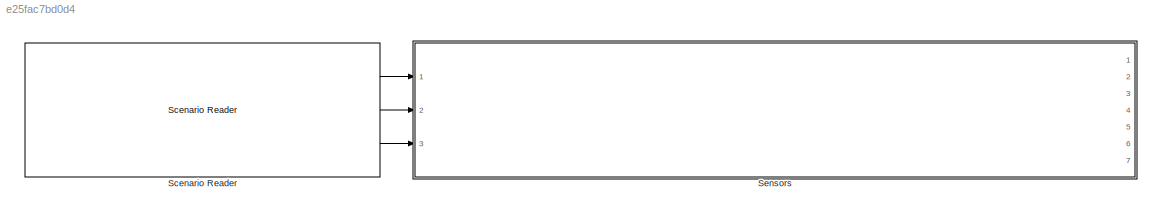
MODEL slx_e25fac7bd0d4
KIND model
CONFIG AbsTol = auto
CONFIG EnableMultiTasking = off
CONFIG FixedStep = auto
CONFIG MaxStep = auto
CONFIG MinStep = auto
CONFIG RelTol = 1e-3
CONFIG SampleTimeConstraint = Unconstrained
CONFIG SolverName = FixedStepDiscrete
CONFIG StartTime = 0.0
CONFIG StopTime = 10.0
WORKSPACE source: mxarray member
WORKSPACE firstWarning = 1
WORKSPACE originalScenarioChecksum = 'D0B0A4B173DD3DA6100BB92ACC3E01B4'
BLOCK [Reference] Scenario Reader  REF=drivingscenarioandsensors/Scenario Reader
  Ports = [0, 3]
  SourceBlock = drivingscenarioandsensors/Scenario Reader
  SourceProductBaseCode = DR
  SourceType = driving.scenario.internal.ScenarioReader
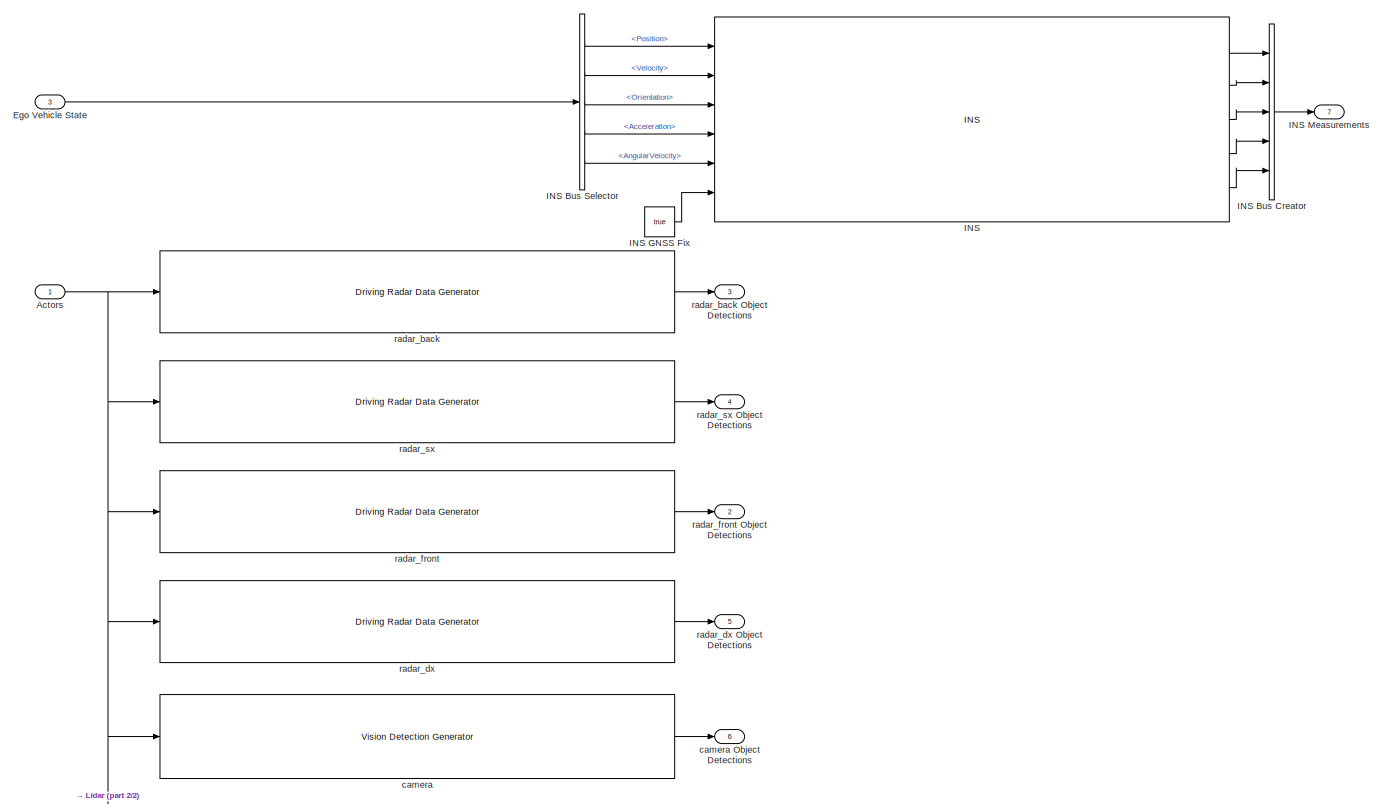
[diagram: Sensors - part 1/2, most of the canvas]
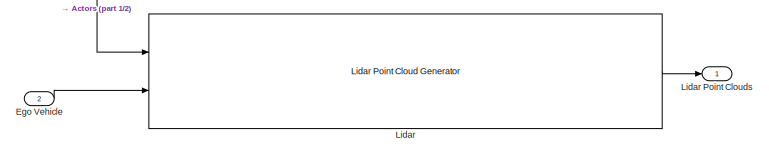
[diagram: Sensors - part 2/2, bottom left region]
BLOCK [SubSystem] Sensors
  Ports = [3, 7]
  RequestExecContextInheritance = off
BLOCK [Inport] Sensors/Actors
BLOCK [Inport] Sensors/Ego Vehicle
  Port = 2
BLOCK [Inport] Sensors/Ego Vehicle State
  Port = 3
BLOCK [Reference] Sensors/INS  REF=sensorinslib/INS
  Ports = [6, 5]
  SourceBlock = sensorinslib/INS
  SourceProductBaseCode = DR,TF,NV,UV
  SourceType = fusion.internal.simulink.insSensor
BLOCK [BusCreator] Sensors/INS Bus Creator
  InheritFromInputs = on
  Inputs = 5
  Ports = [5, 1]
BLOCK [BusSelector] Sensors/INS Bus Selector
  OutputSignals = Position,Velocity,Orientation,Acceleration,AngularVelocity
  Ports = [1, 5]
BLOCK [Constant] Sensors/INS GNSS Fix
  Value = true
BLOCK [Outport] Sensors/INS Measurements
  Port = 7
BLOCK [Reference] Sensors/Lidar  REF=drivingscenarioandsensors/Lidar Point Cloud Generator
  Ports = [2, 1]
  SourceBlock = drivingscenarioandsensors/Lidar Point Cloud Generator
  SourceProductBaseCode = DR
  SourceType = lidarPointCloudGenerator
BLOCK [Outport] Sensors/Lidar Point Clouds
BLOCK [Reference] Sensors/camera  REF=drivingscenarioandsensors/Vision Detection Generator
  Ports = [1, 1]
  SourceBlock = drivingscenarioandsensors/Vision Detection Generator
  SourceProductBaseCode = DR
  SourceType = visionDetectionGenerator
BLOCK [Outport] Sensors/camera Object Detections
  Port = 6
BLOCK [Reference] Sensors/radar_back  REF=drivingscenarioandsensors/Driving Radar Data Generator
  Ports = [1, 1]
  SourceBlock = drivingscenarioandsensors/Driving Radar Data Generator
  SourceProductBaseCode = DR
  SourceType = drivingRadarDataGenerator
BLOCK [Outport] Sensors/radar_back Object Detections
  Port = 3
BLOCK [Reference] Sensors/radar_dx  REF=drivingscenarioandsensors/Driving Radar Data Generator
  Ports = [1, 1]
  SourceBlock = drivingscenarioandsensors/Driving Radar Data Generator
  SourceProductBaseCode = DR
  SourceType = drivingRadarDataGenerator
BLOCK [Outport] Sensors/radar_dx Object Detections
  Port = 5
BLOCK [Reference] Sensors/radar_front  REF=drivingscenarioandsensors/Driving Radar Data Generator
  Ports = [1, 1]
  SourceBlock = drivingscenarioandsensors/Driving Radar Data Generator
  SourceProductBaseCode = DR
  SourceType = drivingRadarDataGenerator
BLOCK [Outport] Sensors/radar_front Object Detections
  Port = 2
BLOCK [Reference] Sensors/radar_sx  REF=drivingscenarioandsensors/Driving Radar Data Generator
  Ports = [1, 1]
  SourceBlock = drivingscenarioandsensors/Driving Radar Data Generator
  SourceProductBaseCode = DR
  SourceType = drivingRadarDataGenerator
BLOCK [Outport] Sensors/radar_sx Object Detections
  Port = 4
LINE Scenario Reader:1 -> Sensors:1
LINE Scenario Reader:2 -> Sensors:2
LINE Scenario Reader:3 -> Sensors:3
NET Sensors/Actors:1 -> Sensors/Lidar:1, Sensors/camera:1, Sensors/radar_back:1, Sensors/radar_dx:1, Sensors/radar_front:1, Sensors/radar_sx:1
LINE Sensors/Ego Vehicle State:1 -> Sensors/INS Bus Selector:1
LINE Sensors/Ego Vehicle:1 -> Sensors/Lidar:2
LINE Sensors/INS Bus Creator:1 -> Sensors/INS Measurements:1
LINE Sensors/INS Bus Selector:1 -> Sensors/INS:1
LINE Sensors/INS Bus Selector:2 -> Sensors/INS:2
LINE Sensors/INS Bus Selector:3 -> Sensors/INS:3
LINE Sensors/INS Bus Selector:4 -> Sensors/INS:4
LINE Sensors/INS Bus Selector:5 -> Sensors/INS:5
LINE Sensors/INS GNSS Fix:1 -> Sensors/INS:6
LINE Sensors/INS:1 -> Sensors/INS Bus Creator:1
LINE Sensors/INS:2 -> Sensors/INS Bus Creator:2
LINE Sensors/INS:3 -> Sensors/INS Bus Creator:3
LINE Sensors/INS:4 -> Sensors/INS Bus Creator:4
LINE Sensors/INS:5 -> Sensors/INS Bus Creator:5
LINE Sensors/Lidar:1 -> Sensors/Lidar Point Clouds:1
LINE Sensors/camera:1 -> Sensors/camera Object Detections:1
LINE Sensors/radar_back:1 -> Sensors/radar_back Object Detections:1
LINE Sensors/radar_dx:1 -> Sensors/radar_dx Object Detections:1
LINE Sensors/radar_front:1 -> Sensors/radar_front Object Detections:1
LINE Sensors/radar_sx:1 -> Sensors/radar_sx Object Detections:1
note: NET lines group one-source signal fan-out (src -> all destinations, sorted); 1:1 wires keep LINE
